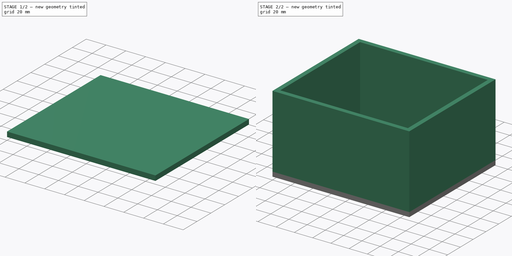
[diagram: build sequence overview — one tinted view per stage of 2, left to right]
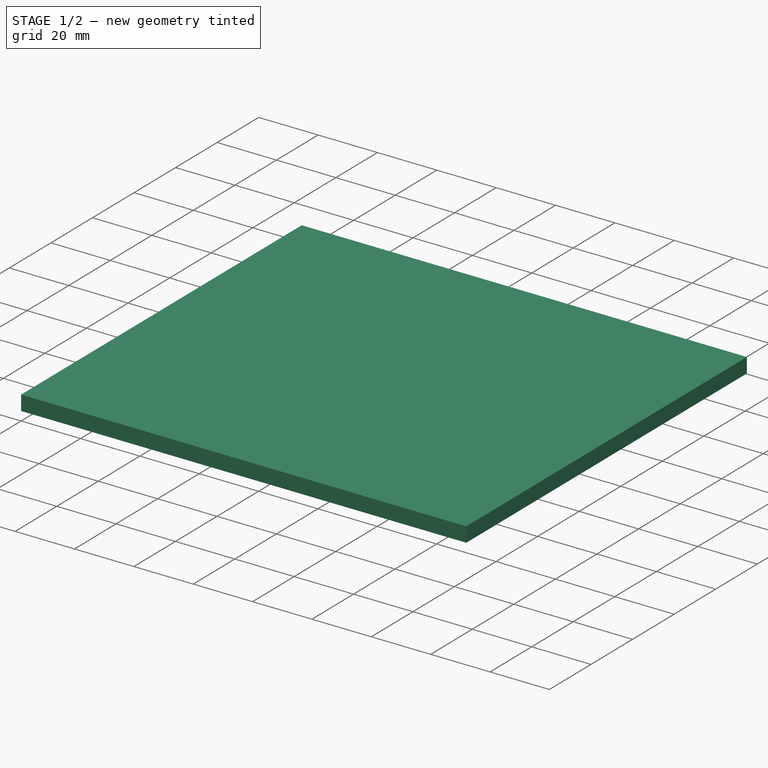
[diagram: stage 1 of 2 — iso view after this stage's code; geometry added in this stage tinted green]
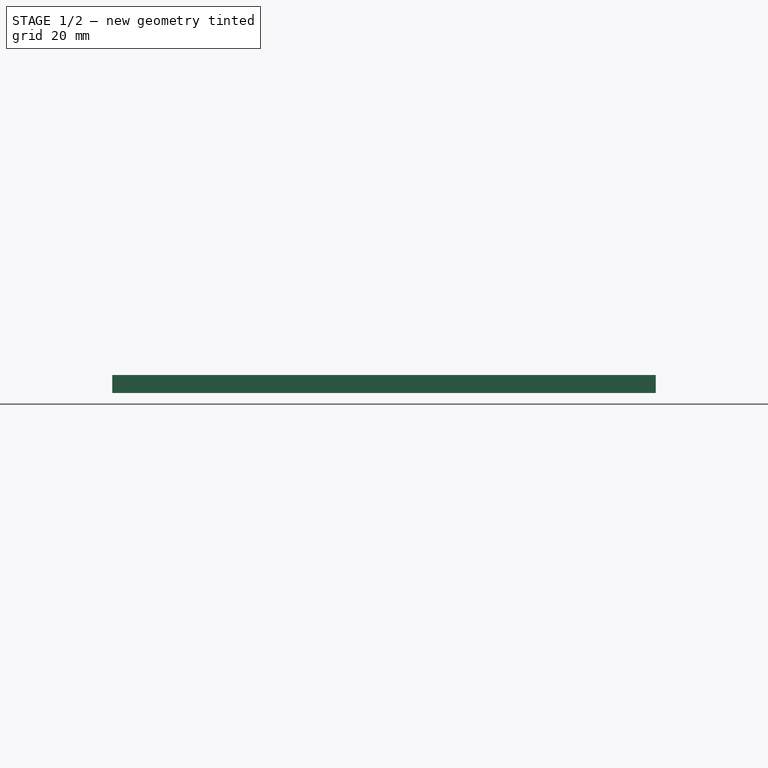
[diagram: stage 1 of 2 — front view after this stage's code; geometry added in this stage tinted green]
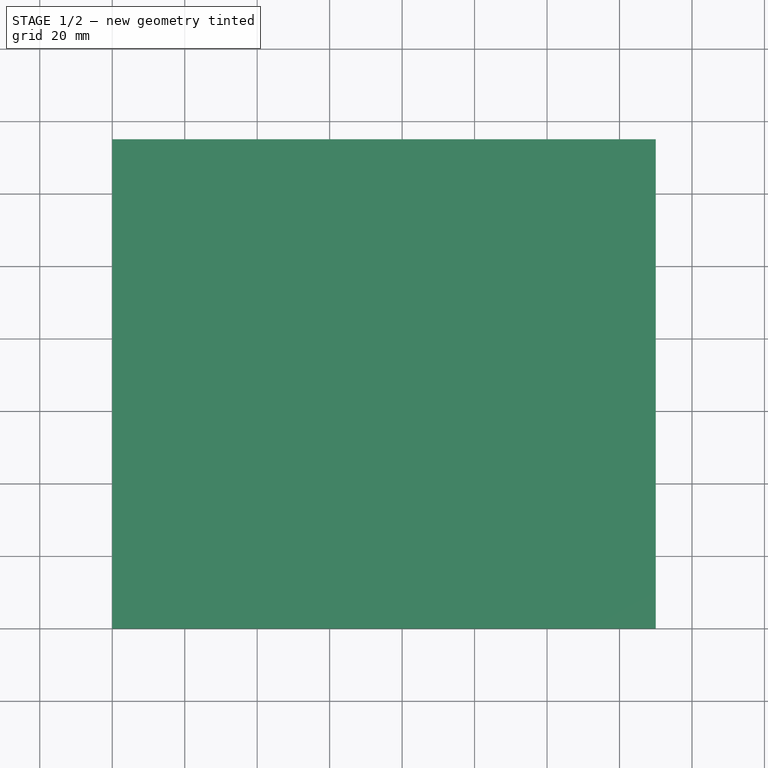
[diagram: stage 1 of 2 — top view after this stage's code; geometry added in this stage tinted green]
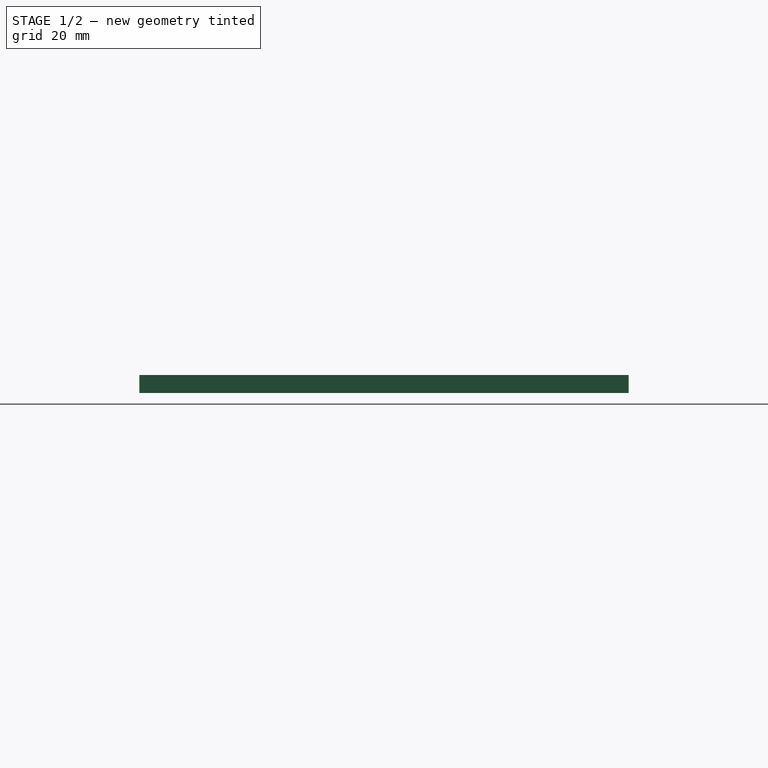
[diagram: stage 1 of 2 — right view after this stage's code; geometry added in this stage tinted green]
FCSTD DOCUMENT  (FreeCAD 0.16R5231 (Git))
Label: Tank_100x100x50
License: All rights reserved
LicenseURL: http://en.wikipedia.org/wiki/All_rights_reserved
objects: Sketcher::SketchObject×2, PartDesign::Pad×2
note: 6 computed .brp shape members not serialized (recipe doc carries the construction recipe); baked Part::Feature solids carry a one-line shape summary decoded from their .brp

FEATURE [Sketcher::SketchObject] Sketch004
  sketch-geometry (4):
    g0: LineSegment StartX=0 StartY=0 StartZ=0 EndX=150 EndY=0 EndZ=0
    g1: LineSegment StartX=150 StartY=0 StartZ=0 EndX=150 EndY=135 EndZ=0
    g2: LineSegment StartX=150 StartY=135 StartZ=0 EndX=0 EndY=135 EndZ=0
    g3: LineSegment StartX=0 StartY=135 StartZ=0 EndX=0 EndY=0 EndZ=0
  constraints (11):
    c: Coincident(g0,g1)
    c: Coincident(g1,g2)
    c: Coincident(g2,g3)
    c: Coincident(g3,g0)
    c: Horizontal(g0)
    c: Horizontal(g2)
    c: Vertical(g1)
    c: Vertical(g3)
    c: Coincident(g0,g-1)
    c: DistanceX(g0) = 150
    c: DistanceY(g-1,g2) = 135
FEATURE [PartDesign::Pad] Pad003
  Length = 5
  Length2 = 100
  Sketch = -> Sketch004
  Type = 0
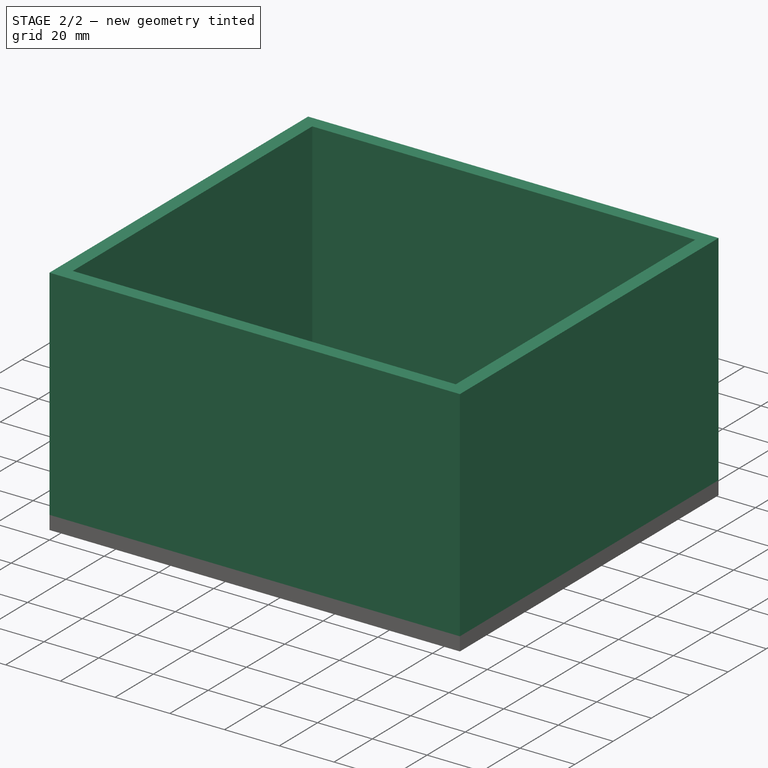
[diagram: stage 2 of 2 — iso view after this stage's code; geometry added in this stage tinted green]
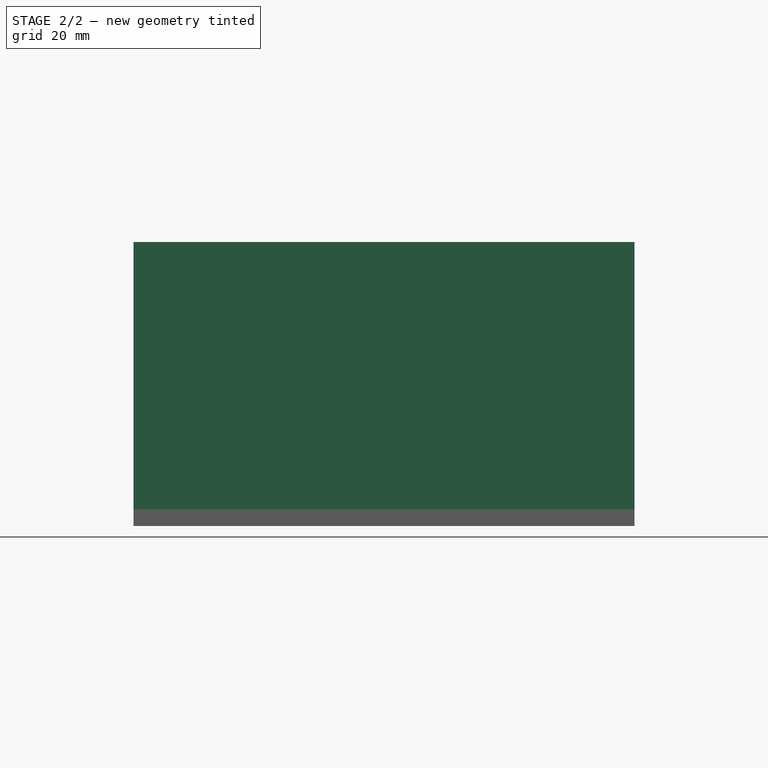
[diagram: stage 2 of 2 — front view after this stage's code; geometry added in this stage tinted green]
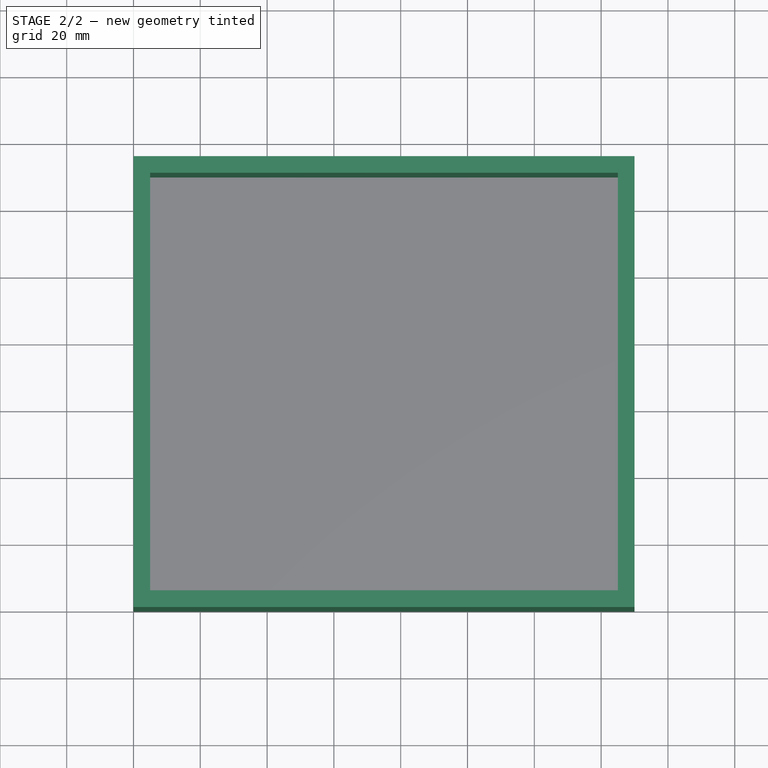
[diagram: stage 2 of 2 — top view after this stage's code; geometry added in this stage tinted green]
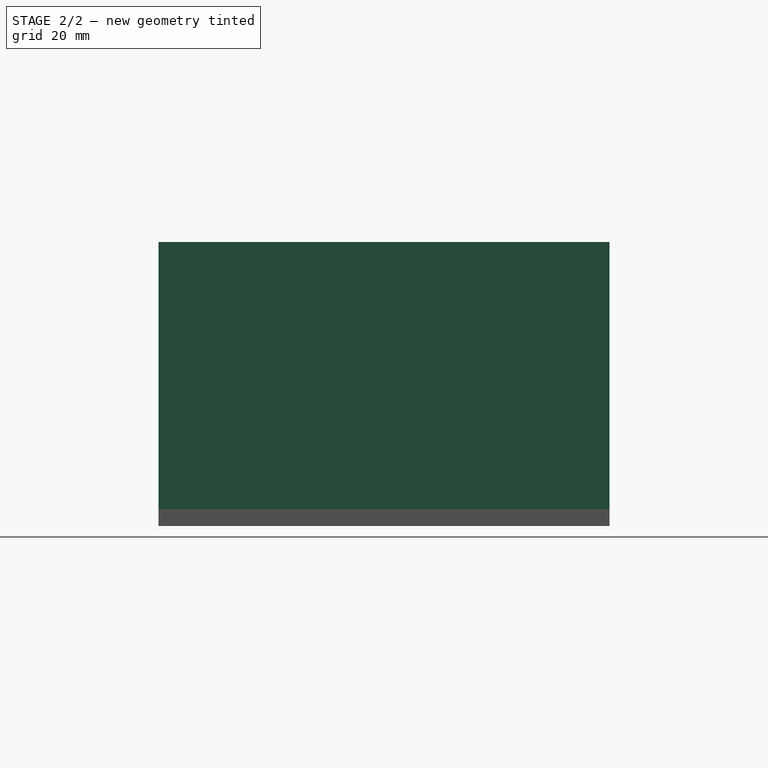
[diagram: stage 2 of 2 — right view after this stage's code; geometry added in this stage tinted green]
FEATURE [Sketcher::SketchObject] Sketch005
  ExternalGeometry = -> [Pad003]
  Placement = pos=(0,0,5) rot=(0,0,1;0rad)
  Support = -> Pad003 [Face6]
  sketch-geometry (8):
    g0: LineSegment StartX=0 StartY=0 StartZ=0 EndX=150 EndY=0 EndZ=0
    g1: LineSegment StartX=150 StartY=0 StartZ=0 EndX=150 EndY=135 EndZ=0
    g2: LineSegment StartX=150 StartY=135 StartZ=0 EndX=0 EndY=135 EndZ=0
    g3: LineSegment StartX=0 StartY=135 StartZ=0 EndX=0 EndY=0 EndZ=0
    g4: LineSegment StartX=5 StartY=5 StartZ=0 EndX=145 EndY=5 EndZ=0
    g5: LineSegment StartX=145 StartY=5 StartZ=0 EndX=145 EndY=130 EndZ=0
    g6: LineSegment StartX=145 StartY=130 StartZ=0 EndX=5 EndY=130 EndZ=0
    g7: LineSegment StartX=5 StartY=130 StartZ=0 EndX=5 EndY=5 EndZ=0
  constraints (22):
    c: Coincident(g0,g1)
    c: Coincident(g1,g2)
    c: Coincident(g2,g3)
    c: Coincident(g3,g0)
    c: Horizontal(g0)
    c: Horizontal(g2)
    c: Vertical(g1)
    c: Vertical(g3)
    c: Coincident(g0,g-1)
    c: Coincident(g1,g-6)
    c: Coincident(g4,g5)
    c: Coincident(g5,g6)
    c: Coincident(g6,g7)
    c: Coincident(g7,g4)
    c: Horizontal(g4)
    c: Horizontal(g6)
    c: Vertical(g5)
    c: Vertical(g7)
    c: DistanceX(g-1,g4) = 5
    c: DistanceY(g-1,g4) = 5
    c: DistanceX(g5,g1) = 5
    c: DistanceY(g5,g1) = 5
FEATURE [PartDesign::Pad] Pad004  label="Tank_100x100x50"
  Length = 80
  Length2 = 100
  Sketch = -> Sketch005
  Type = 0
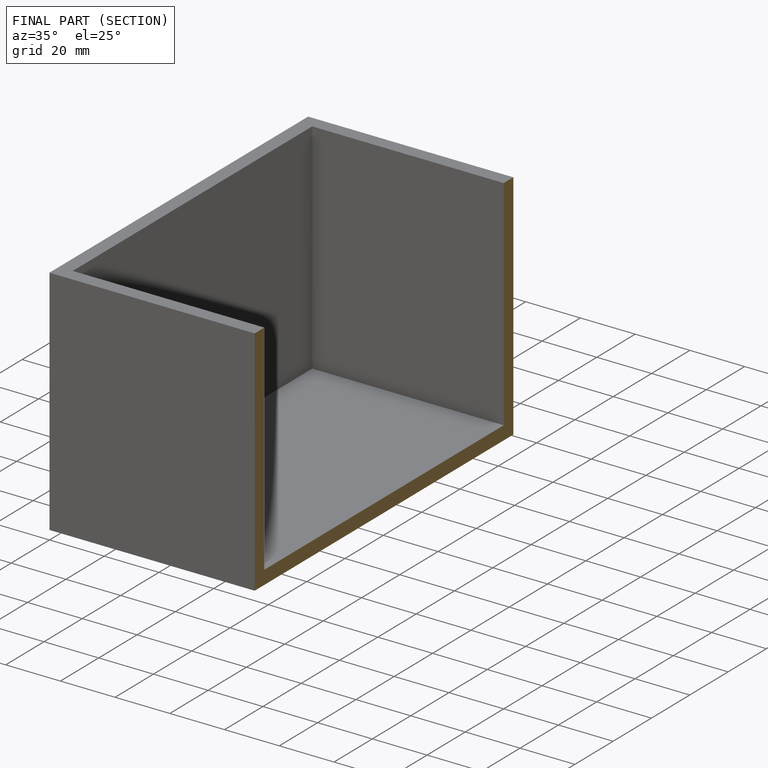
[diagram: finished part — half-section view (interior)]
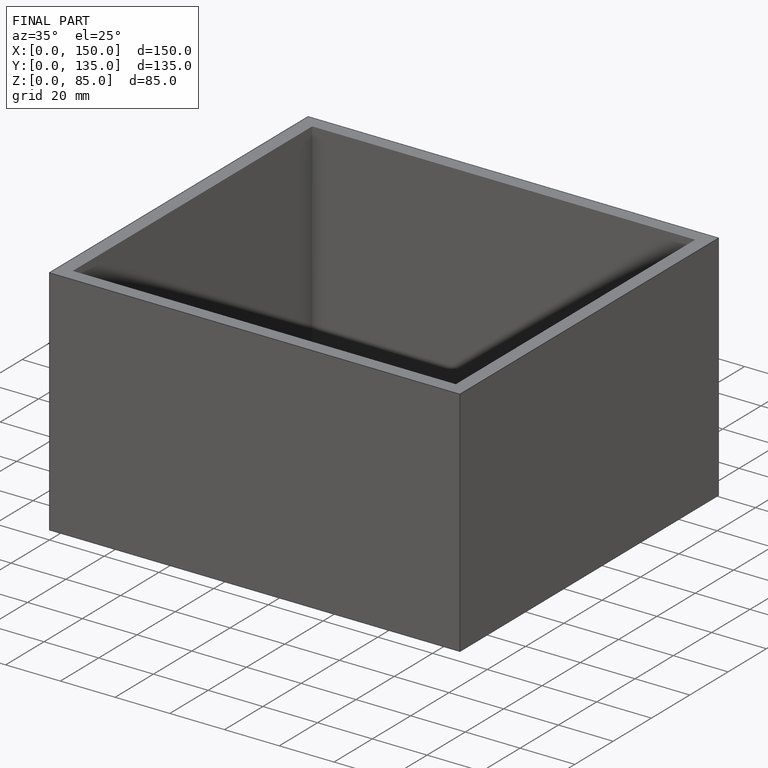
[diagram: finished part — iso view with bounding-box wireframe]
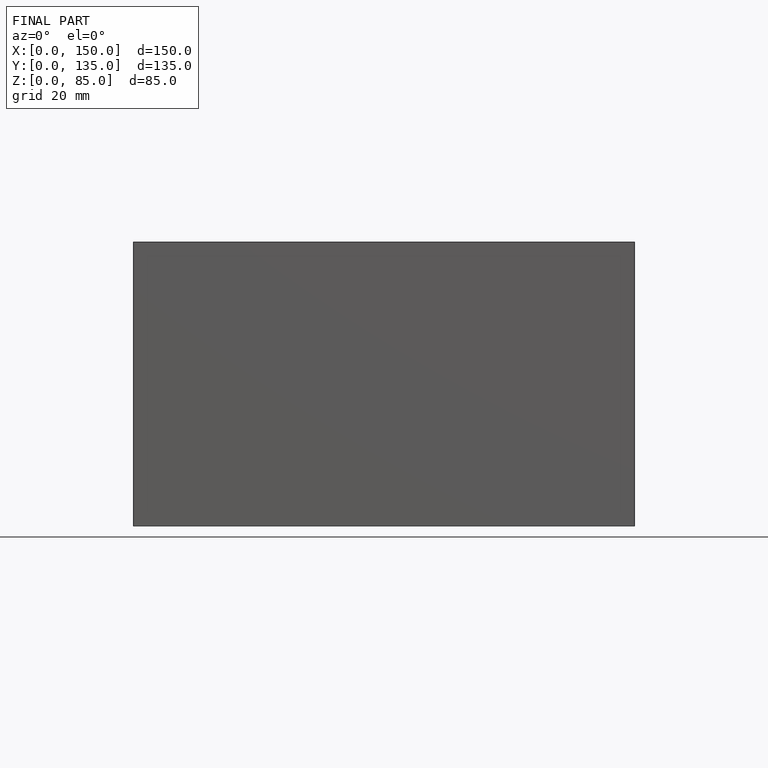
[diagram: finished part — front view with bounding-box wireframe]
